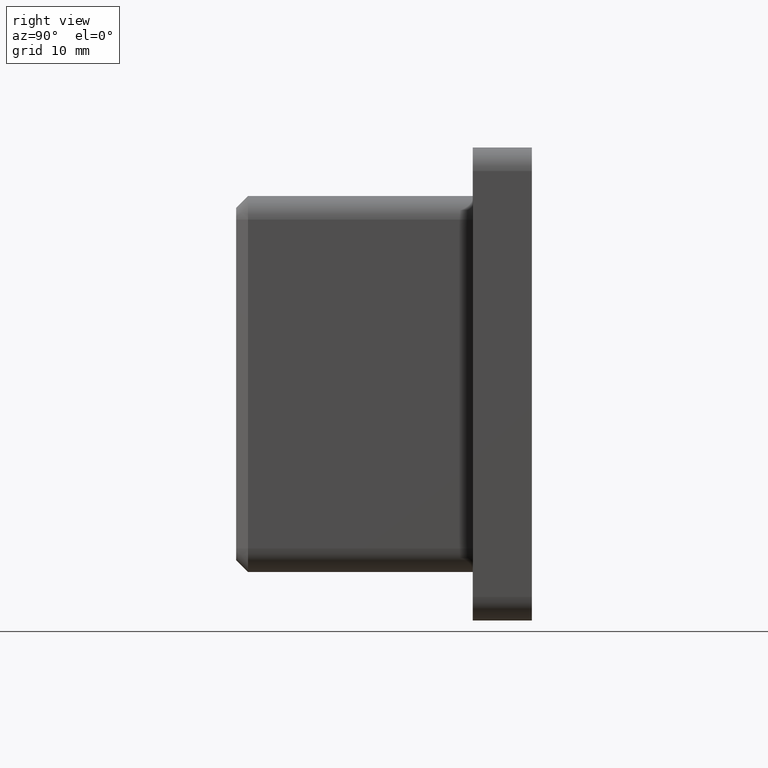
[diagram: clean part render]
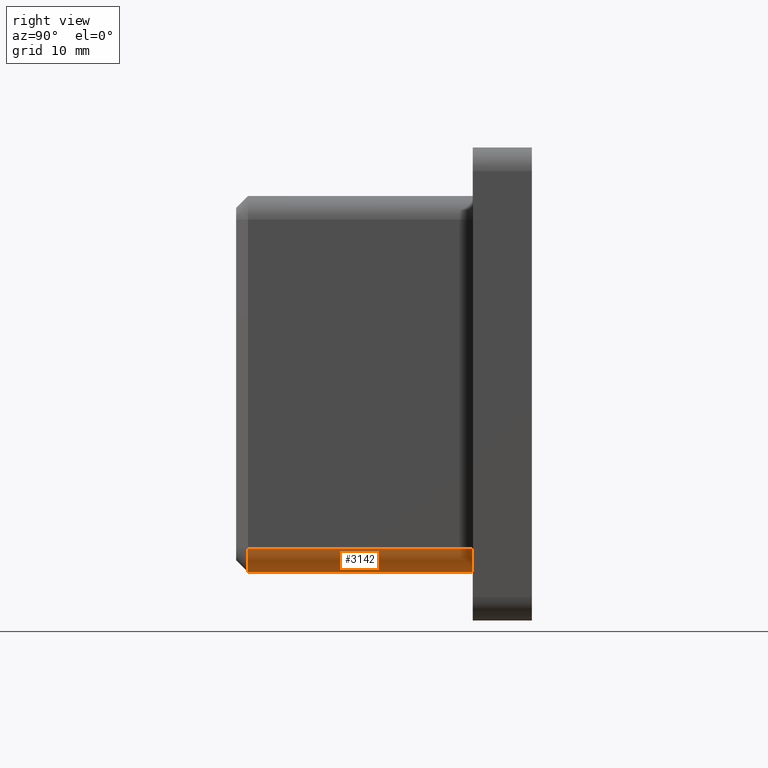
[diagram: same view with one face highlighted and labeled with its STEP entity id]
A machine part, right view. The second image highlights one B-rep face of the part: STEP entity #3142.
In plain terms, the highlighted cylindrical surface (edge-blend (fillet) strip) has radius 2 mm, axis along (0, 1, 0).
Its self-contained STEP definition (entity closure, byte-faithful):
#19 = VERTEX_POINT ( 'NONE', #1660 ) ;
#413 = EDGE_CURVE ( 'NONE', #7666, #14759, #14193, .T. ) ;
#962 = ORIENTED_EDGE ( 'NONE', *, *, #8295, .F. ) ;
#1230 = CARTESIAN_POINT ( 'NONE',  ( 15.90000000000000000, -20.00000000000000000, -13.89999999999999900 ) ) ;
#1660 = CARTESIAN_POINT ( 'NONE',  ( 15.90000000000000000, -18.99999999999998600, -13.89999999999999900 ) ) ;
#2384 = CIRCLE ( 'NONE', #6327, 1.999999999999998200 ) ;
#3142 = ADVANCED_FACE ( 'NONE', ( #11791 ), #9285, .T. ) ;
#3323 = DIRECTION ( 'NONE',  ( 0.0000000000000000000, 1.000000000000000000, 0.0000000000000000000 ) ) ;
#3443 = EDGE_CURVE ( 'NONE', #19, #14759, #2384, .T. ) ;
#3747 = AXIS2_PLACEMENT_3D ( 'NONE', #12116, #13248, #14364 ) ;
#4343 = CARTESIAN_POINT ( 'NONE',  ( 13.89999999999999900, 0.0000000000000000000, -15.90000000000000000 ) ) ;
#4579 = CARTESIAN_POINT ( 'NONE',  ( 13.90000000000000000, -18.99999999999998600, -13.89999999999999900 ) ) ;
#4588 = VERTEX_POINT ( 'NONE', #13975 ) ;
#4782 = AXIS2_PLACEMENT_3D ( 'NONE', #12740, #3323, #11416 ) ;
#6028 = EDGE_LOOP ( 'NONE', ( #962, #12792, #6547, #12671 ) ) ;
#6327 = AXIS2_PLACEMENT_3D ( 'NONE', #4579, #8053, #13751 ) ;
#6358 = CARTESIAN_POINT ( 'NONE',  ( 13.89999999999999900, -20.00000000000000000, -15.90000000000000000 ) ) ;
#6547 = ORIENTED_EDGE ( 'NONE', *, *, #413, .F. ) ;
#7134 = LINE ( 'NONE', #1230, #10211 ) ;
#7666 = VERTEX_POINT ( 'NONE', #4343 ) ;
#8053 = DIRECTION ( 'NONE',  ( 0.0000000000000000000, 1.000000000000000000, 0.0000000000000000000 ) ) ;
#8295 = EDGE_CURVE ( 'NONE', #19, #4588, #7134, .T. ) ;
#9285 = CYLINDRICAL_SURFACE ( 'NONE', #4782, 2.000000000000000000 ) ;
#9363 = DIRECTION ( 'NONE',  ( 0.0000000000000000000, 1.000000000000000000, 0.0000000000000000000 ) ) ;
#10005 = VECTOR ( 'NONE', #14489, 1000.000000000000000 ) ;
#10211 = VECTOR ( 'NONE', #9363, 1000.000000000000000 ) ;
#11416 = DIRECTION ( 'NONE',  ( 0.0000000000000000000, 0.0000000000000000000, 1.000000000000000000 ) ) ;
#11791 = FACE_OUTER_BOUND ( 'NONE', #6028, .T. ) ;
#12116 = CARTESIAN_POINT ( 'NONE',  ( 13.90000000000000000, 0.0000000000000000000, -13.89999999999999900 ) ) ;
#12671 = ORIENTED_EDGE ( 'NONE', *, *, #14165, .F. ) ;
#12740 = CARTESIAN_POINT ( 'NONE',  ( 13.90000000000000000, -20.00000000000000000, -13.89999999999999900 ) ) ;
#12792 = ORIENTED_EDGE ( 'NONE', *, *, #3443, .T. ) ;
#13248 = DIRECTION ( 'NONE',  ( 0.0000000000000000000, 1.000000000000000000, 0.0000000000000000000 ) ) ;
#13751 = DIRECTION ( 'NONE',  ( 0.0000000000000000000, 0.0000000000000000000, -1.000000000000000000 ) ) ;
#13804 = CIRCLE ( 'NONE', #3747, 2.000000000000000000 ) ;
#13975 = CARTESIAN_POINT ( 'NONE',  ( 15.90000000000000000, 0.0000000000000000000, -13.89999999999999900 ) ) ;
#14165 = EDGE_CURVE ( 'NONE', #4588, #7666, #13804, .T. ) ;
#14193 = LINE ( 'NONE', #6358, #10005 ) ;
#14364 = DIRECTION ( 'NONE',  ( 0.0000000000000000000, 0.0000000000000000000, 1.000000000000000000 ) ) ;
#14489 = DIRECTION ( 'NONE',  ( -0.0000000000000000000, -1.000000000000000000, -0.0000000000000000000 ) ) ;
#14759 = VERTEX_POINT ( 'NONE', #15026 ) ;
#15026 = CARTESIAN_POINT ( 'NONE',  ( 13.89999999999999900, -18.99999999999998600, -15.90000000000000000 ) ) ;